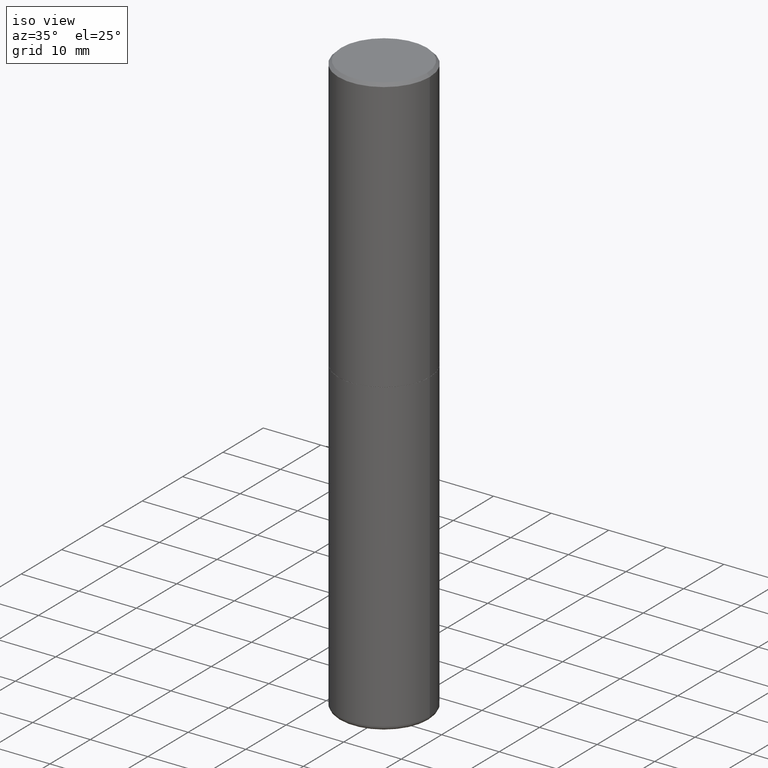
[diagram: clean part render]
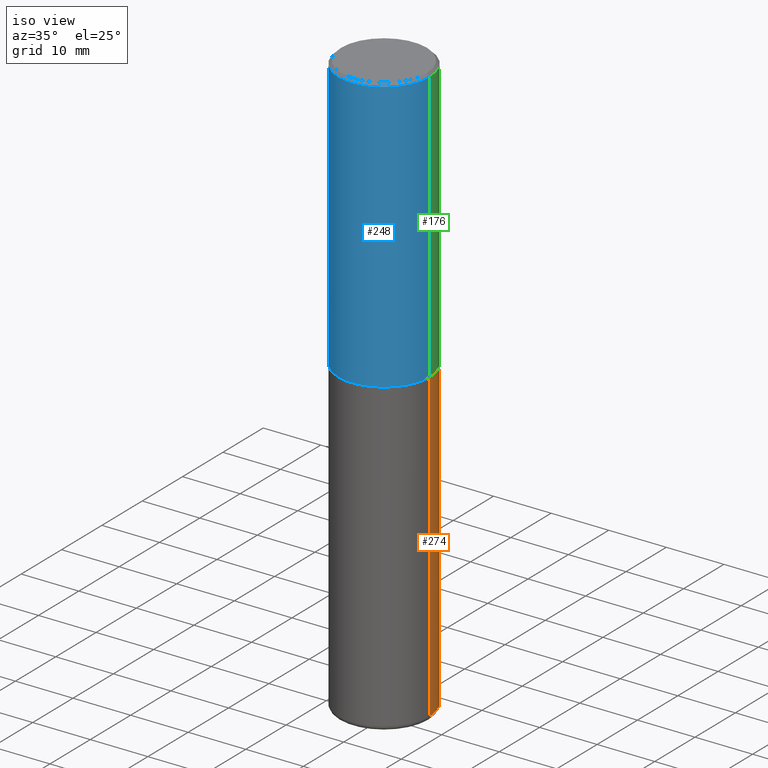
[diagram: same view with three faces highlighted in distinct colors, each labeled with its STEP entity id]
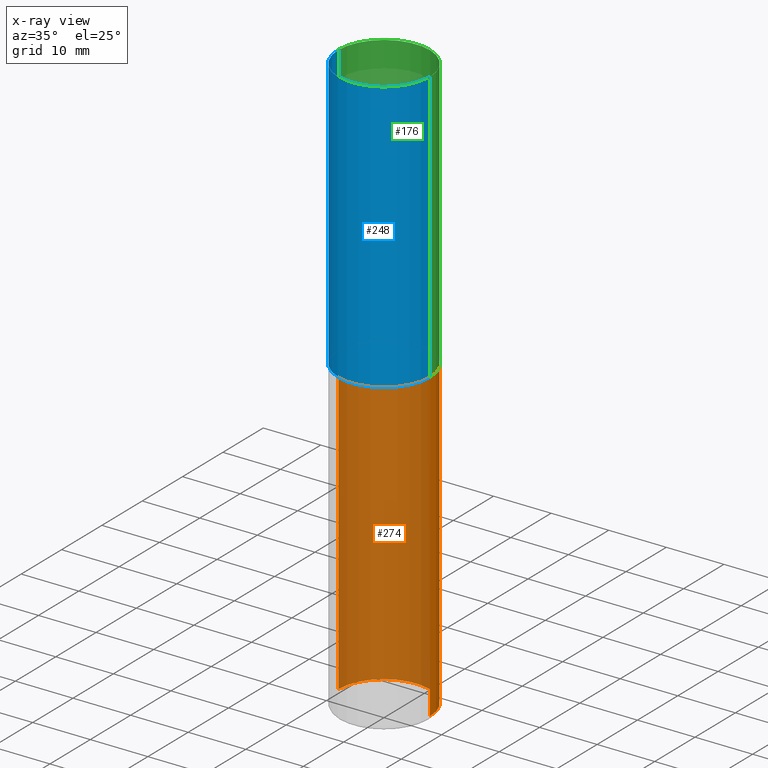
[diagram: x-ray of the same camera — body ghosted, the three highlighted faces saturated]
A machine part, iso view with three faces highlighted in distinct colors.
The next image is the same camera in x-ray (body ghosted, the three faces saturated) — at least one of them is partly hidden behind the body in this view.
Their STEP definitions:

[orange] entity #274 — the highlighted cylindrical surface (partial cylindrical patch) has radius 7.9375 mm, axis along (-0, 0, 1).
#4 = CYLINDRICAL_SURFACE ( 'NONE', #440, 0.3125000000000000000 ) ;
#12 = VECTOR ( 'NONE', #355, 39.37007874015748143 ) ;
#16 = CIRCLE ( 'NONE', #90, 0.3125000000000000000 ) ;
#79 = FACE_OUTER_BOUND ( 'NONE', #139, .T. ) ;
#80 = ORIENTED_EDGE ( 'NONE', *, *, #283, .F. ) ;
#84 = CIRCLE ( 'NONE', #164, 0.3125000000000000000 ) ;
#90 = AXIS2_PLACEMENT_3D ( 'NONE', #264, #336, #108 ) ;
#92 = EDGE_CURVE ( 'NONE', #492, #143, #84, .T. ) ;
#100 = EDGE_CURVE ( 'NONE', #450, #404, #16, .T. ) ;
#108 = DIRECTION ( 'NONE',  ( 1.000000000000000000, -6.982962677686265133E-15, 0.000000000000000000 ) ) ;
#120 = DIRECTION ( 'NONE',  ( -2.445468806185136597E-29, 3.491481338843145583E-15, 1.000000000000000000 ) ) ;
#133 = ORIENTED_EDGE ( 'NONE', *, *, #92, .T. ) ;
#138 = DIRECTION ( 'NONE',  ( -2.445468806185136597E-29, 3.491481338843145583E-15, 1.000000000000000000 ) ) ;
#139 = EDGE_LOOP ( 'NONE', ( #133, #290, #218, #80 ) ) ;
#143 = VERTEX_POINT ( 'NONE', #389 ) ;
#152 = EDGE_CURVE ( 'NONE', #143, #404, #183, .T. ) ;
#164 = AXIS2_PLACEMENT_3D ( 'NONE', #261, #138, #410 ) ;
#180 = CARTESIAN_POINT ( 'NONE',  ( 0.3125000000000000000, -1.604336074033157510E-14, -3.970001142308074993 ) ) ;
#183 = LINE ( 'NONE', #229, #319 ) ;
#218 = ORIENTED_EDGE ( 'NONE', *, *, #100, .F. ) ;
#229 = CARTESIAN_POINT ( 'NONE',  ( -0.3125000000000000000, 2.220446049250313081E-15, -1.537167215704658232E-29 ) ) ;
#237 = CARTESIAN_POINT ( 'NONE',  ( 0.000000000000000000, 0.000000000000000000, 0.000000000000000000 ) ) ;
#261 = CARTESIAN_POINT ( 'NONE',  ( 9.708513954033757613E-29, -1.386118490355461518E-14, -3.970001142308074993 ) ) ;
#264 = CARTESIAN_POINT ( 'NONE',  ( 4.585254011597131119E-29, -6.546527510330898707E-15, -1.875000000000000000 ) ) ;
#274 = ADVANCED_FACE ( 'NONE', ( #79 ), #4, .T. ) ;
#283 = EDGE_CURVE ( 'NONE', #492, #450, #350, .T. ) ;
#290 = ORIENTED_EDGE ( 'NONE', *, *, #152, .T. ) ;
#302 = DIRECTION ( 'NONE',  ( -2.445468806185136877E-29, 3.491481338843145188E-15, 1.000000000000000000 ) ) ;
#304 = CARTESIAN_POINT ( 'NONE',  ( 0.3125000000000000000, -8.728703347107857054E-15, -1.875000000000000000 ) ) ;
#307 = CARTESIAN_POINT ( 'NONE',  ( -0.3125000000000000000, -7.983410157692443863E-15, -1.875000000000000000 ) ) ;
#316 = DIRECTION ( 'NONE',  ( 1.000000000000000000, -6.982962677686266711E-15, 4.876176775795936353E-29 ) ) ;
#319 = VECTOR ( 'NONE', #302, 39.37007874015748143 ) ;
#336 = DIRECTION ( 'NONE',  ( -2.445468806185136597E-29, 3.491481338843145583E-15, 1.000000000000000000 ) ) ;
#350 = LINE ( 'NONE', #394, #12 ) ;
#355 = DIRECTION ( 'NONE',  ( -2.445468806185136877E-29, 3.491481338843145188E-15, 1.000000000000000000 ) ) ;
#389 = CARTESIAN_POINT ( 'NONE',  ( -0.3125000000000000000, -7.983410157692443863E-15, -3.970001142308074993 ) ) ;
#394 = CARTESIAN_POINT ( 'NONE',  ( 0.3125000000000000000, -2.182175836776958347E-15, 1.523805242436230075E-29 ) ) ;
#404 = VERTEX_POINT ( 'NONE', #307 ) ;
#410 = DIRECTION ( 'NONE',  ( 1.000000000000000000, -6.982962677686269077E-15, 0.000000000000000000 ) ) ;
#440 = AXIS2_PLACEMENT_3D ( 'NONE', #237, #120, #316 ) ;
#450 = VERTEX_POINT ( 'NONE', #304 ) ;
#492 = VERTEX_POINT ( 'NONE', #180 ) ;

[blue] entity #248 — the highlighted cylindrical surface (partial cylindrical patch) has radius 7.9375 mm, axis along (-0, 0, 1).
#6 = CARTESIAN_POINT ( 'NONE',  ( 0.3125000000000000000, -8.725211865769012469E-15, -1.874000000000000110 ) ) ;
#21 = VERTEX_POINT ( 'NONE', #6 ) ;
#42 = DIRECTION ( 'NONE',  ( -2.445468806185136597E-29, 3.491481338843145583E-15, 1.000000000000000000 ) ) ;
#76 = DIRECTION ( 'NONE',  ( -2.445468806185136877E-29, 3.491481338843145188E-15, 1.000000000000000000 ) ) ;
#82 = CARTESIAN_POINT ( 'NONE',  ( 4.890937612370308191E-31, -6.982962677686342145E-17, -0.02000000000000014613 ) ) ;
#98 = AXIS2_PLACEMENT_3D ( 'NONE', #82, #347, #400 ) ;
#125 = LINE ( 'NONE', #208, #285 ) ;
#135 = VERTEX_POINT ( 'NONE', #266 ) ;
#154 = DIRECTION ( 'NONE',  ( 1.000000000000000000, -6.982962677686266711E-15, 4.876176775795935232E-29 ) ) ;
#192 = CIRCLE ( 'NONE', #216, 0.3125000000000000000 ) ;
#202 = CARTESIAN_POINT ( 'NONE',  ( 0.000000000000000000, 0.000000000000000000, 0.000000000000000000 ) ) ;
#208 = CARTESIAN_POINT ( 'NONE',  ( -0.3124999999999996114, 2.220446049250310320E-15, -1.537167215704655990E-29 ) ) ;
#216 = AXIS2_PLACEMENT_3D ( 'NONE', #279, #352, #272 ) ;
#223 = EDGE_CURVE ( 'NONE', #235, #21, #192, .T. ) ;
#235 = VERTEX_POINT ( 'NONE', #241 ) ;
#241 = CARTESIAN_POINT ( 'NONE',  ( -0.3125000000000000000, -1.085986778634142671E-15, -1.874000000000000110 ) ) ;
#248 = ADVANCED_FACE ( 'NONE', ( #395 ), #314, .T. ) ;
#253 = EDGE_CURVE ( 'NONE', #135, #270, #322, .T. ) ;
#260 = EDGE_LOOP ( 'NONE', ( #372, #475, #452, #299 ) ) ;
#266 = CARTESIAN_POINT ( 'NONE',  ( -0.3124999999999991673, 2.112346210000089527E-15, -0.02000000000000014613 ) ) ;
#270 = VERTEX_POINT ( 'NONE', #276 ) ;
#272 = DIRECTION ( 'NONE',  ( 1.000000000000000000, -6.982962677686265133E-15, 0.000000000000000000 ) ) ;
#276 = CARTESIAN_POINT ( 'NONE',  ( 0.3124999999999991673, -2.213735251080461389E-15, -0.02000000000000014613 ) ) ;
#279 = CARTESIAN_POINT ( 'NONE',  ( 4.582808542790945516E-29, -6.543036028992054911E-15, -1.874000000000000110 ) ) ;
#280 = LINE ( 'NONE', #406, #412 ) ;
#285 = VECTOR ( 'NONE', #472, 39.37007874015748143 ) ;
#299 = ORIENTED_EDGE ( 'NONE', *, *, #253, .F. ) ;
#314 = CYLINDRICAL_SURFACE ( 'NONE', #480, 0.3124999999999996114 ) ;
#322 = CIRCLE ( 'NONE', #98, 0.3124999999999991673 ) ;
#347 = DIRECTION ( 'NONE',  ( -2.445468806185136597E-29, 3.491481338843145583E-15, 1.000000000000000000 ) ) ;
#352 = DIRECTION ( 'NONE',  ( -2.445468806185136597E-29, 3.491481338843145583E-15, 1.000000000000000000 ) ) ;
#372 = ORIENTED_EDGE ( 'NONE', *, *, #469, .F. ) ;
#395 = FACE_OUTER_BOUND ( 'NONE', #260, .T. ) ;
#397 = EDGE_CURVE ( 'NONE', #21, #270, #280, .T. ) ;
#400 = DIRECTION ( 'NONE',  ( 1.000000000000000000, -6.982962677686267499E-15, 0.000000000000000000 ) ) ;
#406 = CARTESIAN_POINT ( 'NONE',  ( 0.3124999999999996114, -2.182175836776955586E-15, 1.523805242436227833E-29 ) ) ;
#412 = VECTOR ( 'NONE', #76, 39.37007874015748143 ) ;
#452 = ORIENTED_EDGE ( 'NONE', *, *, #397, .T. ) ;
#469 = EDGE_CURVE ( 'NONE', #235, #135, #125, .T. ) ;
#472 = DIRECTION ( 'NONE',  ( -2.445468806185136877E-29, 3.491481338843145188E-15, 1.000000000000000000 ) ) ;
#475 = ORIENTED_EDGE ( 'NONE', *, *, #223, .T. ) ;
#480 = AXIS2_PLACEMENT_3D ( 'NONE', #202, #42, #154 ) ;

[green] entity #176 — the highlighted cylindrical surface (partial cylindrical patch) has radius 7.9375 mm, axis along (-0, 0, 1).
#6 = CARTESIAN_POINT ( 'NONE',  ( 0.3125000000000000000, -8.725211865769012469E-15, -1.874000000000000110 ) ) ;
#21 = VERTEX_POINT ( 'NONE', #6 ) ;
#76 = DIRECTION ( 'NONE',  ( -2.445468806185136877E-29, 3.491481338843145188E-15, 1.000000000000000000 ) ) ;
#125 = LINE ( 'NONE', #208, #285 ) ;
#127 = DIRECTION ( 'NONE',  ( -2.445468806185136597E-29, 3.491481338843145583E-15, 1.000000000000000000 ) ) ;
#130 = CARTESIAN_POINT ( 'NONE',  ( 4.582808542790945516E-29, -6.543036028992054911E-15, -1.874000000000000110 ) ) ;
#135 = VERTEX_POINT ( 'NONE', #266 ) ;
#149 = DIRECTION ( 'NONE',  ( 1.000000000000000000, -6.982962677686265133E-15, 0.000000000000000000 ) ) ;
#166 = ORIENTED_EDGE ( 'NONE', *, *, #478, .T. ) ;
#172 = ORIENTED_EDGE ( 'NONE', *, *, #397, .F. ) ;
#176 = ADVANCED_FACE ( 'NONE', ( #449 ), #413, .T. ) ;
#182 = CIRCLE ( 'NONE', #456, 0.3124999999999991673 ) ;
#188 = EDGE_LOOP ( 'NONE', ( #166, #432, #380, #172 ) ) ;
#208 = CARTESIAN_POINT ( 'NONE',  ( -0.3124999999999996114, 2.220446049250310320E-15, -1.537167215704655990E-29 ) ) ;
#235 = VERTEX_POINT ( 'NONE', #241 ) ;
#241 = CARTESIAN_POINT ( 'NONE',  ( -0.3125000000000000000, -1.085986778634142671E-15, -1.874000000000000110 ) ) ;
#266 = CARTESIAN_POINT ( 'NONE',  ( -0.3124999999999991673, 2.112346210000089527E-15, -0.02000000000000014613 ) ) ;
#270 = VERTEX_POINT ( 'NONE', #276 ) ;
#276 = CARTESIAN_POINT ( 'NONE',  ( 0.3124999999999991673, -2.213735251080461389E-15, -0.02000000000000014613 ) ) ;
#277 = AXIS2_PLACEMENT_3D ( 'NONE', #334, #379, #339 ) ;
#280 = LINE ( 'NONE', #406, #412 ) ;
#285 = VECTOR ( 'NONE', #472, 39.37007874015748143 ) ;
#300 = AXIS2_PLACEMENT_3D ( 'NONE', #130, #420, #149 ) ;
#324 = EDGE_CURVE ( 'NONE', #270, #135, #182, .T. ) ;
#334 = CARTESIAN_POINT ( 'NONE',  ( 0.000000000000000000, 0.000000000000000000, 0.000000000000000000 ) ) ;
#339 = DIRECTION ( 'NONE',  ( 1.000000000000000000, -6.982962677686266711E-15, 4.876176775795935232E-29 ) ) ;
#354 = CIRCLE ( 'NONE', #300, 0.3125000000000000000 ) ;
#362 = DIRECTION ( 'NONE',  ( 1.000000000000000000, -6.982962677686267499E-15, 0.000000000000000000 ) ) ;
#379 = DIRECTION ( 'NONE',  ( -2.445468806185136597E-29, 3.491481338843145583E-15, 1.000000000000000000 ) ) ;
#380 = ORIENTED_EDGE ( 'NONE', *, *, #324, .F. ) ;
#397 = EDGE_CURVE ( 'NONE', #21, #270, #280, .T. ) ;
#406 = CARTESIAN_POINT ( 'NONE',  ( 0.3124999999999996114, -2.182175836776955586E-15, 1.523805242436227833E-29 ) ) ;
#412 = VECTOR ( 'NONE', #76, 39.37007874015748143 ) ;
#413 = CYLINDRICAL_SURFACE ( 'NONE', #277, 0.3124999999999996114 ) ;
#420 = DIRECTION ( 'NONE',  ( -2.445468806185136597E-29, 3.491481338843145583E-15, 1.000000000000000000 ) ) ;
#432 = ORIENTED_EDGE ( 'NONE', *, *, #469, .T. ) ;
#435 = CARTESIAN_POINT ( 'NONE',  ( 4.890937612370308191E-31, -6.982962677686342145E-17, -0.02000000000000014613 ) ) ;
#449 = FACE_OUTER_BOUND ( 'NONE', #188, .T. ) ;
#456 = AXIS2_PLACEMENT_3D ( 'NONE', #435, #127, #362 ) ;
#469 = EDGE_CURVE ( 'NONE', #235, #135, #125, .T. ) ;
#472 = DIRECTION ( 'NONE',  ( -2.445468806185136877E-29, 3.491481338843145188E-15, 1.000000000000000000 ) ) ;
#478 = EDGE_CURVE ( 'NONE', #21, #235, #354, .T. ) ;